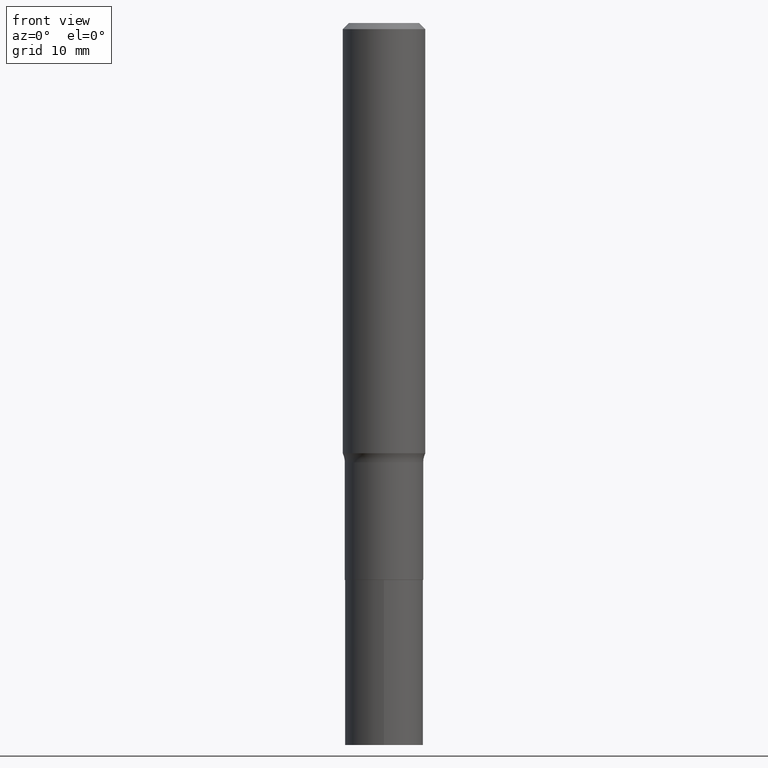
[diagram: clean part render]
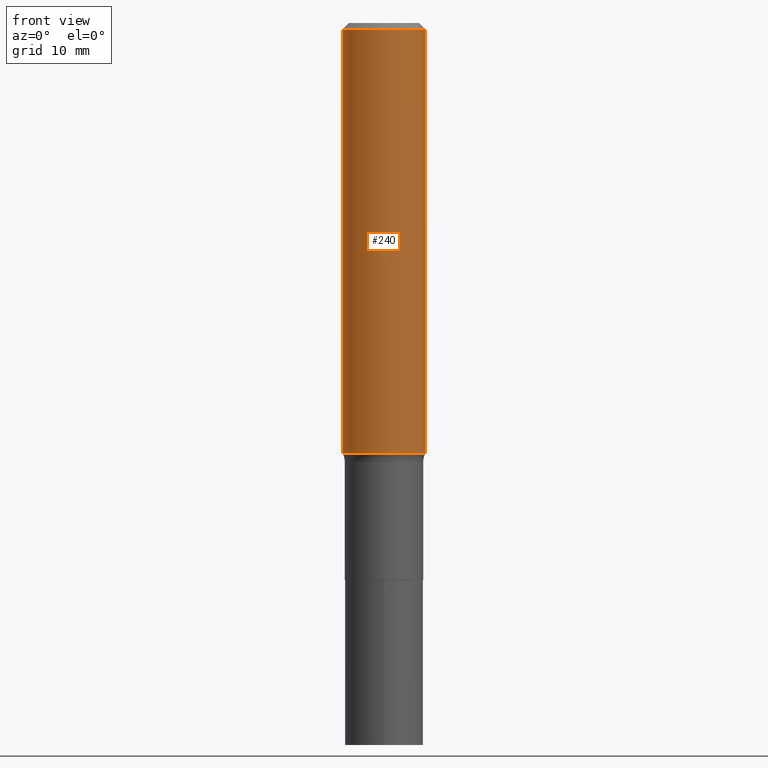
[diagram: same view with one face highlighted and labeled with its STEP entity id]
A machine part, front view. The second image highlights one B-rep face of the part: STEP entity #240.
In plain terms, the highlighted cylindrical surface (partial cylindrical patch) has radius 4.0005 mm, axis along (-0, 0, 1).
Its self-contained STEP definition (entity closure, byte-faithful):
#6 = ORIENTED_EDGE ( 'NONE', *, *, #347, .T. ) ;
#17 = EDGE_CURVE ( 'NONE', #56, #340, #242, .T. ) ;
#33 = AXIS2_PLACEMENT_3D ( 'NONE', #193, #449, #114 ) ;
#35 = EDGE_LOOP ( 'NONE', ( #426, #6, #84, #290 ) ) ;
#36 = LINE ( 'NONE', #72, #44 ) ;
#44 = VECTOR ( 'NONE', #463, 39.37007874015748143 ) ;
#56 = VERTEX_POINT ( 'NONE', #169 ) ;
#72 = CARTESIAN_POINT ( 'NONE',  ( -0.1575000000000000844, 1.119104808822158392E-15, -7.747322767151481189E-30 ) ) ;
#84 = ORIENTED_EDGE ( 'NONE', *, *, #17, .T. ) ;
#114 = DIRECTION ( 'NONE',  ( 1.000000000000000000, -6.982962677686265922E-15, 0.000000000000000000 ) ) ;
#126 = VERTEX_POINT ( 'NONE', #348 ) ;
#127 = CIRCLE ( 'NONE', #33, 0.1575000000000000011 ) ;
#134 = DIRECTION ( 'NONE',  ( 1.000000000000000000, -6.982962677686265922E-15, 0.000000000000000000 ) ) ;
#148 = CARTESIAN_POINT ( 'NONE',  ( 0.000000000000000000, 0.000000000000000000, 0.000000000000000000 ) ) ;
#151 = CYLINDRICAL_SURFACE ( 'NONE', #413, 0.1575000000000000844 ) ;
#164 = DIRECTION ( 'NONE',  ( -2.445468806185136877E-29, 3.491481338843145188E-15, 1.000000000000000000 ) ) ;
#169 = CARTESIAN_POINT ( 'NONE',  ( 0.1575000000000001954, -6.834002263693680067E-15, -1.642336041772468835 ) ) ;
#172 = CARTESIAN_POINT ( 'NONE',  ( 0.1575000000000000011, -1.182302868365756679E-15, -0.02362500000000015629 ) ) ;
#180 = AXIS2_PLACEMENT_3D ( 'NONE', #250, #253, #134 ) ;
#193 = CARTESIAN_POINT ( 'NONE',  ( 5.777420054612422856E-31, -8.248624663016985234E-17, -0.02362500000000015629 ) ) ;
#204 = CARTESIAN_POINT ( 'NONE',  ( 0.1575000000000000844, -1.099816621735587677E-15, 7.679978421878603638E-30 ) ) ;
#224 = DIRECTION ( 'NONE',  ( -2.445468806185136597E-29, 3.491481338843145583E-15, 1.000000000000000000 ) ) ;
#240 = ADVANCED_FACE ( 'NONE', ( #298 ), #151, .T. ) ;
#242 = LINE ( 'NONE', #204, #300 ) ;
#250 = CARTESIAN_POINT ( 'NONE',  ( 4.016281559428142167E-29, -5.734185641958091798E-15, -1.642336041772468835 ) ) ;
#253 = DIRECTION ( 'NONE',  ( -2.445468806185136597E-29, 3.491481338843145583E-15, 1.000000000000000000 ) ) ;
#290 = ORIENTED_EDGE ( 'NONE', *, *, #417, .F. ) ;
#298 = FACE_OUTER_BOUND ( 'NONE', #35, .T. ) ;
#300 = VECTOR ( 'NONE', #164, 39.37007874015748143 ) ;
#332 = CARTESIAN_POINT ( 'NONE',  ( -0.1575000000000000011, -1.789231135471971811E-15, -0.02362500000000015629 ) ) ;
#338 = CIRCLE ( 'NONE', #180, 0.1575000000000001954 ) ;
#340 = VERTEX_POINT ( 'NONE', #172 ) ;
#347 = EDGE_CURVE ( 'NONE', #126, #56, #338, .T. ) ;
#348 = CARTESIAN_POINT ( 'NONE',  ( -0.1575000000000001954, -4.615080833135933406E-15, -1.642336041772468835 ) ) ;
#372 = EDGE_CURVE ( 'NONE', #126, #442, #36, .T. ) ;
#411 = DIRECTION ( 'NONE',  ( 1.000000000000000000, -6.982962677686267499E-15, 4.876176775795936353E-29 ) ) ;
#413 = AXIS2_PLACEMENT_3D ( 'NONE', #148, #224, #411 ) ;
#417 = EDGE_CURVE ( 'NONE', #442, #340, #127, .T. ) ;
#426 = ORIENTED_EDGE ( 'NONE', *, *, #372, .F. ) ;
#442 = VERTEX_POINT ( 'NONE', #332 ) ;
#449 = DIRECTION ( 'NONE',  ( -2.445468806185136597E-29, 3.491481338843145583E-15, 1.000000000000000000 ) ) ;
#463 = DIRECTION ( 'NONE',  ( -2.445468806185136877E-29, 3.491481338843145188E-15, 1.000000000000000000 ) ) ;